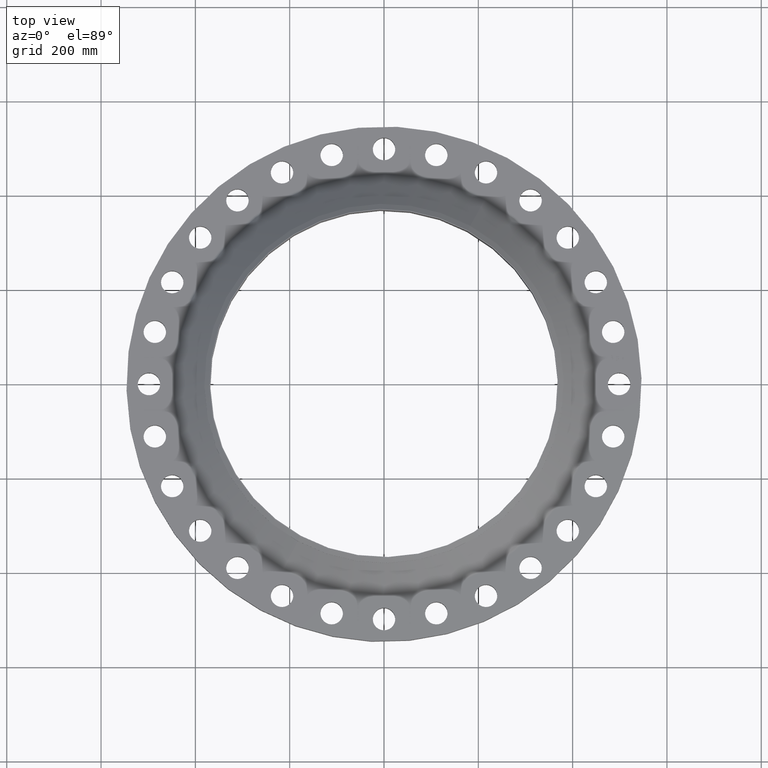
[diagram: clean part render]
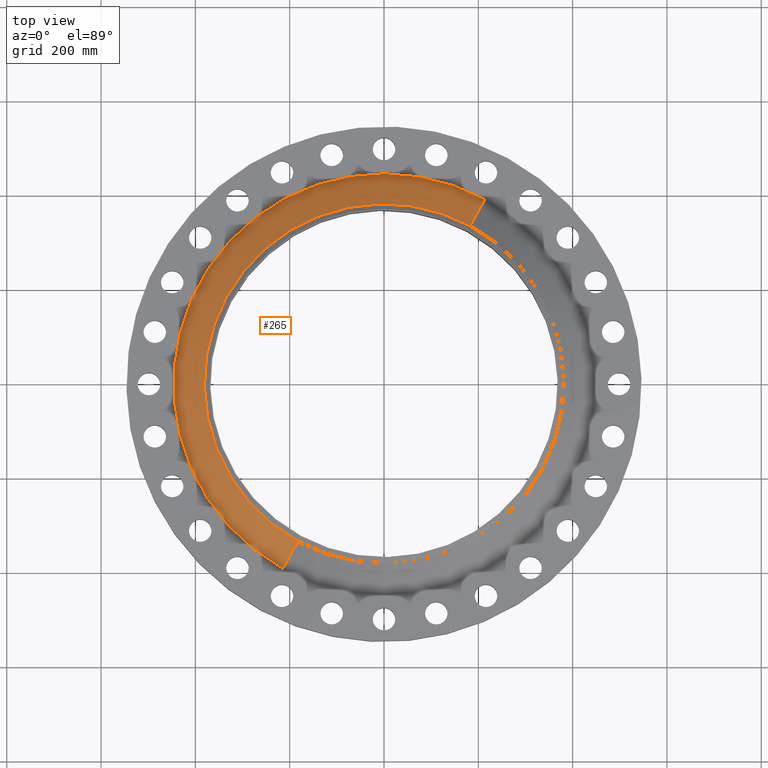
[diagram: same view with one face highlighted and labeled with its STEP entity id]
A machine part, top view. The second image highlights one B-rep face of the part: STEP entity #265.
In plain terms, the highlighted conical surface has half-angle 47.232 deg.
Its self-contained STEP definition (entity closure, byte-faithful):
#184=CARTESIAN_POINT('Vertex',(213.751703343,391.269868465,77.8884233863)) ;
#191=CARTESIAN_POINT('Vertex',(-213.751703343,-391.269868465,77.8884233863)) ;
#211=CARTESIAN_POINT('Axis2P3D Location',(0.,0.,77.8884233863)) ;
#223=CARTESIAN_POINT('Axis2P3D Location',(0.,0.,137.873078847)) ;
#228=CARTESIAN_POINT('Line Origine',(198.206416776,362.814412273,107.880751116)) ;
#232=CARTESIAN_POINT('Vertex',(182.661130209,334.358956082,137.873078847)) ;
#239=CARTESIAN_POINT('Vertex',(-182.661130209,-334.358956082,137.873078847)) ;
#242=CARTESIAN_POINT('Line Origine',(-198.206416776,-362.814412273,107.880751116)) ;
#254=CARTESIAN_POINT('Axis2P3D Location',(0.,0.,137.873078847)) ;
#212=DIRECTION('Axis2P3D Direction',(0.,0.,-1.)) ;
#224=DIRECTION('Axis2P3D Direction',(0.,0.,-1.)) ;
#225=DIRECTION('Axis2P3D XDirection',(0.479425538604,0.87758256189,0.)) ;
#229=DIRECTION('Vector Direction',(0.351949429751,0.644239109822,-0.679034290941)) ;
#243=DIRECTION('Vector Direction',(-0.351949429751,-0.644239109822,-0.679034290941)) ;
#255=DIRECTION('Axis2P3D Direction',(0.,0.,-1.)) ;
#213=AXIS2_PLACEMENT_3D('Circle Axis2P3D',#211,#212,$) ;
#226=AXIS2_PLACEMENT_3D('Cone Axis2P3D',#223,#224,#225) ;
#256=AXIS2_PLACEMENT_3D('Circle Axis2P3D',#254,#255,$) ;
#260=ORIENTED_EDGE('',*,*,#215,.F.) ;
#261=ORIENTED_EDGE('',*,*,#246,.T.) ;
#262=ORIENTED_EDGE('',*,*,#258,.T.) ;
#263=ORIENTED_EDGE('',*,*,#234,.F.) ;
#230=VECTOR('Line Direction',#229,1.) ;
#244=VECTOR('Line Direction',#243,1.) ;
#265=ADVANCED_FACE('PartBody',(#264),#227,.T.) ;
#214=CIRCLE('generated circle',#213,445.84963906) ;
#257=CIRCLE('generated circle',#256,381.000000002) ;
#227=CONICAL_SURFACE('Cone',#226,381.000000002,0.824349982785) ;
#215=EDGE_CURVE('',#192,#185,#214,.T.) ;
#234=EDGE_CURVE('',#185,#233,#231,.F.) ;
#246=EDGE_CURVE('',#192,#240,#245,.F.) ;
#258=EDGE_CURVE('',#240,#233,#257,.T.) ;
#259=EDGE_LOOP('',(#260,#261,#262,#263)) ;
#264=FACE_OUTER_BOUND('',#259,.T.) ;
#231=LINE('Line',#228,#230) ;
#245=LINE('Line',#242,#244) ;
#185=VERTEX_POINT('',#184) ;
#192=VERTEX_POINT('',#191) ;
#233=VERTEX_POINT('',#232) ;
#240=VERTEX_POINT('',#239) ;